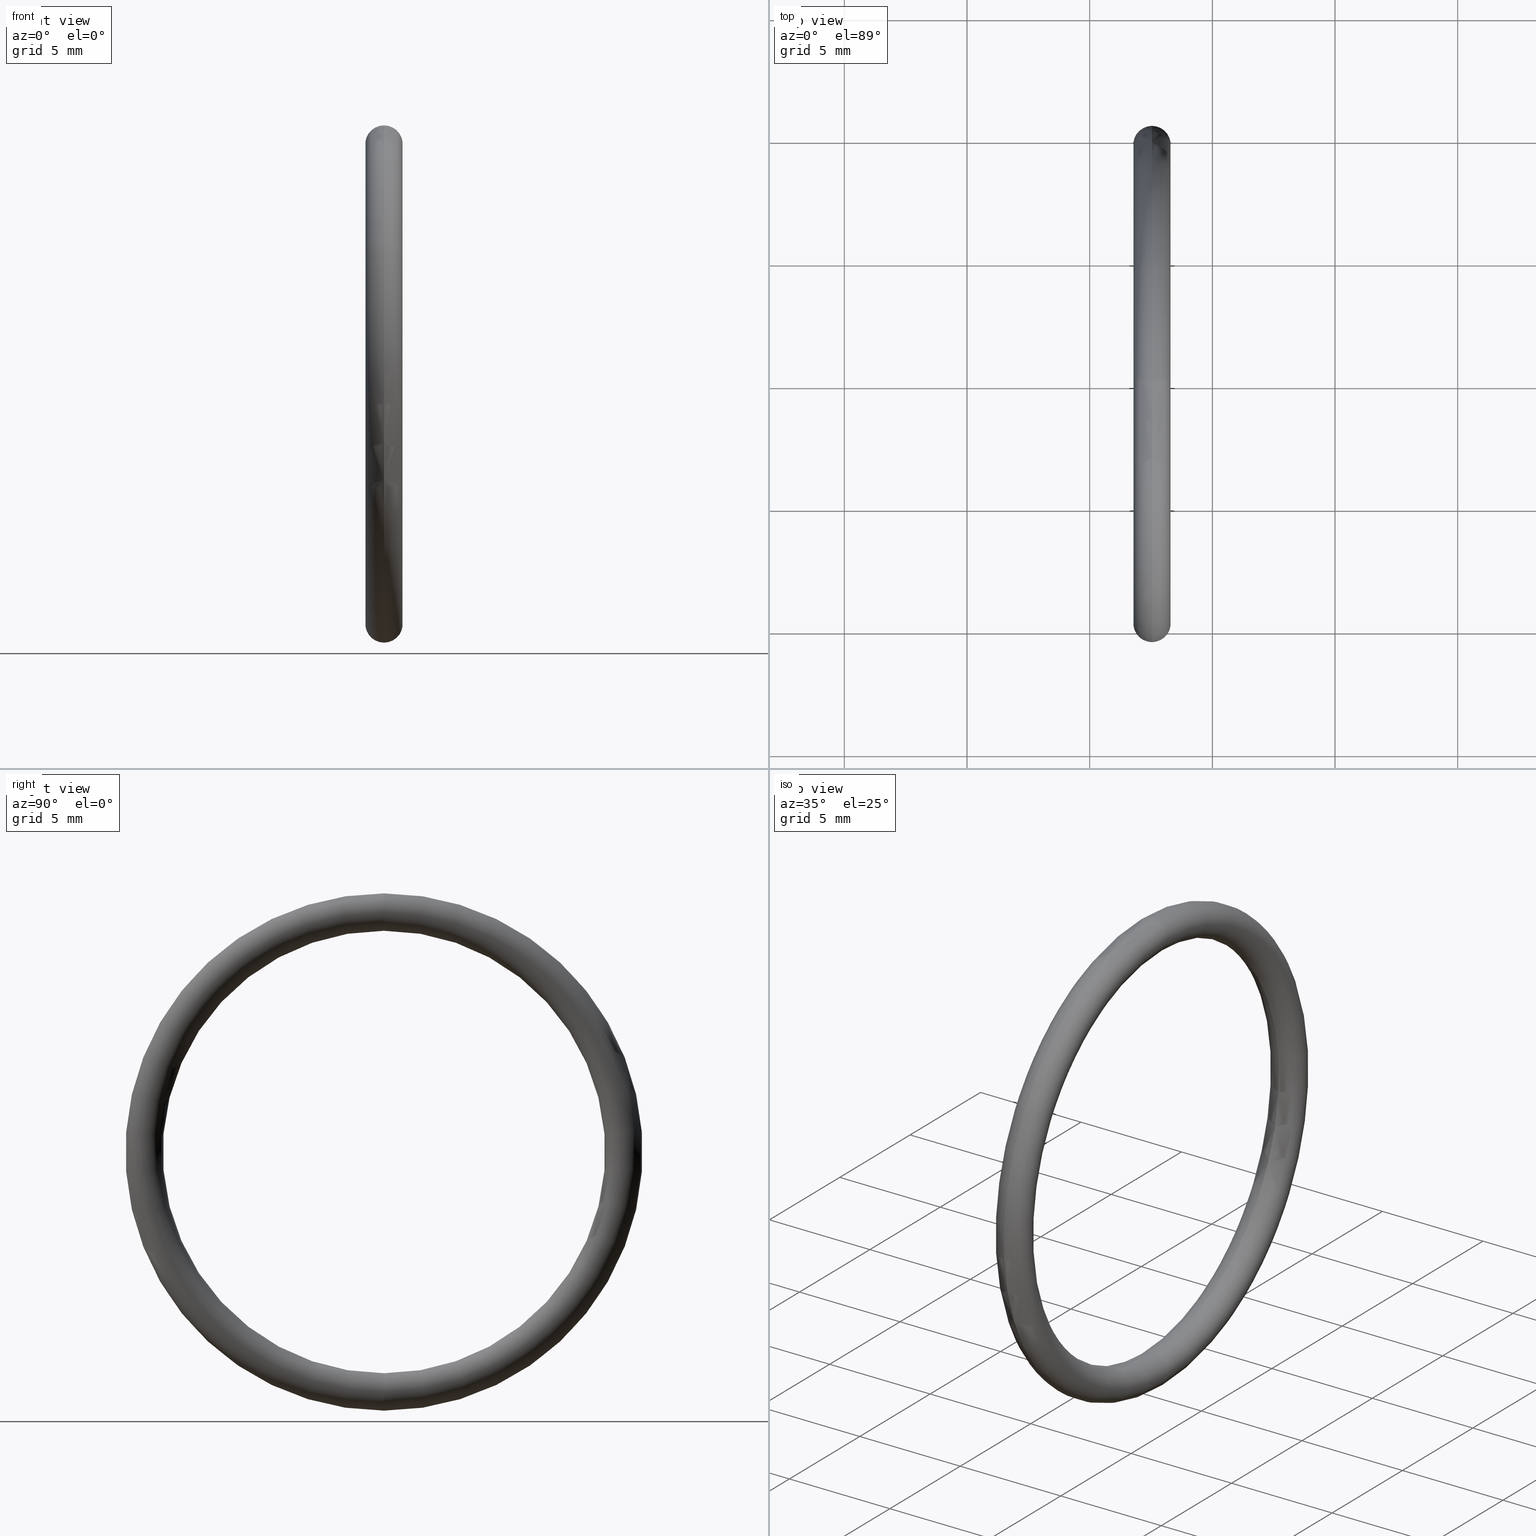
[diagram: canonical four-view strip — front | top / right | iso, engineering-drawing reading convention]
A machine part, canonical four-view strip (front | top / right | iso — engineering-drawing reading convention). The complete STEP part file that produces these views, byte-faithful:
ISO-10303-21;
HEADER;
FILE_DESCRIPTION (( 'STEP AP203' ),
    '1' );
FILE_NAME ('OR-16-SI.STEP',
    '2006-03-03T07:23:42',
    ( 'bay06' ),
    ( '' ),
    'SwSTEP 2.0',
    'SolidWorks 2008',
    '' );
FILE_SCHEMA (( 'CONFIG_CONTROL_DESIGN' ));
ENDSEC;

DATA;
#1 = ORIENTED_EDGE ( 'NONE', *, *, #4, .F. ) ;
#2 = EDGE_CURVE ( 'NONE', #25, #22, #110, .T. ) ;
#3 = ORIENTED_EDGE ( 'NONE', *, *, #6, .F. ) ;
#4 = EDGE_CURVE ( 'NONE', #12, #25, #105, .T. ) ;
#5 = ORIENTED_EDGE ( 'NONE', *, *, #29, .F. ) ;
#6 = EDGE_CURVE ( 'NONE', #12, #11, #142, .T. ) ;
#7 = ORIENTED_EDGE ( 'NONE', *, *, #2, .T. ) ;
#8 = ORIENTED_EDGE ( 'NONE', *, *, #23, .F. ) ;
#9 = ORIENTED_EDGE ( 'NONE', *, *, #100, .T. ) ;
#10 = ORIENTED_EDGE ( 'NONE', *, *, #2, .F. ) ;
#11 = VERTEX_POINT ( 'NONE', #138 ) ;
#12 = VERTEX_POINT ( 'NONE', #137 ) ;
#13 = CLOSED_SHELL ( 'NONE', ( #32, #101, #27, #15 ) ) ;
#14 = ORIENTED_EDGE ( 'NONE', *, *, #6, .T. ) ;
#15 = ADVANCED_FACE ( 'NONE', ( #136 ), #134, .T. ) ;
#16 = EDGE_LOOP ( 'NONE', ( #8, #10, #9, #14 ) ) ;
#17 = ORIENTED_EDGE ( 'NONE', *, *, #18, .T. ) ;
#18 = EDGE_CURVE ( 'NONE', #11, #12, #130, .T. ) ;
#19 = EDGE_LOOP ( 'NONE', ( #21, #24, #17, #99 ) ) ;
#20 = EDGE_CURVE ( 'NONE', #22, #25, #125, .T. ) ;
#21 = ORIENTED_EDGE ( 'NONE', *, *, #20, .F. ) ;
#22 = VERTEX_POINT ( 'NONE', #120 ) ;
#23 = EDGE_CURVE ( 'NONE', #22, #11, #119, .T. ) ;
#24 = ORIENTED_EDGE ( 'NONE', *, *, #23, .T. ) ;
#25 = VERTEX_POINT ( 'NONE', #97 ) ;
#26 = ORIENTED_EDGE ( 'NONE', *, *, #29, .T. ) ;
#27 = ADVANCED_FACE ( 'NONE', ( #96 ), #95, .T. ) ;
#28 = EDGE_LOOP ( 'NONE', ( #5, #3, #31, #7 ) ) ;
#29 = EDGE_CURVE ( 'NONE', #11, #22, #94, .T. ) ;
#30 = ORIENTED_EDGE ( 'NONE', *, *, #20, .T. ) ;
#31 = ORIENTED_EDGE ( 'NONE', *, *, #4, .T. ) ;
#32 = ADVANCED_FACE ( 'NONE', ( #85 ), #84, .T. ) ;
#33 = PRODUCT_DEFINITION_SHAPE ( 'NONE', 'NONE',  #189 ) ;
#34 = PRODUCT_RELATED_PRODUCT_CATEGORY ( 'detail', '', ( #112 ) ) ;
#35 = CC_DESIGN_SECURITY_CLASSIFICATION ( #56, ( #168 ) ) ;
#36 = CC_DESIGN_APPROVAL ( #44, ( #56 ) ) ;
#37 = APPROVAL_DATE_TIME ( #38, #44 ) ;
#38 = DATE_AND_TIME ( #39, #40 ) ;
#39 = CALENDAR_DATE ( 2006, 3, 3 ) ;
#40 = LOCAL_TIME ( 12, 53, 42.00000000000000000, #41 ) ;
#41 = COORDINATED_UNIVERSAL_TIME_OFFSET ( 5, 30, .AHEAD. ) ;
#42 = APPROVAL_PERSON_ORGANIZATION ( #46, #44, #43 ) ;
#43 = APPROVAL_ROLE ( '' ) ;
#44 = APPROVAL ( #45, 'UNSPECIFIED' ) ;
#45 = APPROVAL_STATUS ( 'not_yet_approved' ) ;
#46 = PERSON_AND_ORGANIZATION ( #111, #196 ) ;
#47 = CC_DESIGN_DATE_AND_TIME_ASSIGNMENT ( #49, #48, ( #56 ) ) ;
#48 = DATE_TIME_ROLE ( 'classification_date' ) ;
#49 = DATE_AND_TIME ( #50, #51 ) ;
#50 = CALENDAR_DATE ( 2006, 3, 3 ) ;
#51 = LOCAL_TIME ( 12, 53, 42.00000000000000000, #52 ) ;
#52 = COORDINATED_UNIVERSAL_TIME_OFFSET ( 5, 30, .AHEAD. ) ;
#53 = CC_DESIGN_PERSON_AND_ORGANIZATION_ASSIGNMENT ( #55, #54, ( #56 ) ) ;
#54 = PERSON_AND_ORGANIZATION_ROLE ( 'classification_officer' ) ;
#55 = PERSON_AND_ORGANIZATION ( #111, #196 ) ;
#56 = SECURITY_CLASSIFICATION ( '', '', #57 ) ;
#57 = SECURITY_CLASSIFICATION_LEVEL ( 'unclassified' ) ;
#58 = CC_DESIGN_PERSON_AND_ORGANIZATION_ASSIGNMENT ( #60, #59, ( #168 ) ) ;
#59 = PERSON_AND_ORGANIZATION_ROLE ( 'design_supplier' ) ;
#60 = PERSON_AND_ORGANIZATION ( #111, #196 ) ;
#61 = CC_DESIGN_PERSON_AND_ORGANIZATION_ASSIGNMENT ( #63, #62, ( #168 ) ) ;
#62 = PERSON_AND_ORGANIZATION_ROLE ( 'creator' ) ;
#63 = PERSON_AND_ORGANIZATION ( #111, #196 ) ;
#64 = CC_DESIGN_APPROVAL ( #165, ( #168 ) ) ;
#65 = APPROVAL_DATE_TIME ( #66, #165 ) ;
#66 = DATE_AND_TIME ( #160, #161 ) ;
#67 =( LENGTH_UNIT ( ) NAMED_UNIT ( * ) SI_UNIT ( $, .METRE. ) );
#68 = DIRECTION ( 'NONE',  ( 0.0000000000000000000, 0.0000000000000000000, 1.000000000000000000 ) ) ;
#69 = DIRECTION ( 'NONE',  ( -1.000000000000000000, -0.0000000000000000000, -0.0000000000000000000 ) ) ;
#70 = CARTESIAN_POINT ( 'NONE',  ( 0.1000000000000000600, 0.0000000000000000000, 0.0000000000000000000 ) ) ;
#71 = AXIS2_PLACEMENT_3D ( 'NONE', #70, #69, #68 ) ;
#72 = AXIS2_PLACEMENT_3D ( 'NONE', #151, #150, #149 ) ;
#73 = TOROIDAL_SURFACE ( 'NONE', #71, 0.3850000000000000100, 0.03000000000000000900 ) ;
#74 = FACE_OUTER_BOUND ( 'NONE', #102, .T. ) ;
#75 = DIRECTION ( 'NONE',  ( 0.0000000000000000000, 0.0000000000000000000, 1.000000000000000000 ) ) ;
#76 = DIRECTION ( 'NONE',  ( -1.000000000000000000, -0.0000000000000000000, -0.0000000000000000000 ) ) ;
#77 = CARTESIAN_POINT ( 'NONE',  ( 0.1000000000000000600, 0.0000000000000000000, 0.0000000000000000000 ) ) ;
#78 = AXIS2_PLACEMENT_3D ( 'NONE', #77, #76, #75 ) ;
#79 = DIRECTION ( 'NONE',  ( 0.0000000000000000000, 0.0000000000000000000, 1.000000000000000000 ) ) ;
#80 = DIRECTION ( 'NONE',  ( -1.000000000000000000, -0.0000000000000000000, -0.0000000000000000000 ) ) ;
#81 = CARTESIAN_POINT ( 'NONE',  ( 0.1000000000000000600, 0.0000000000000000000, 0.0000000000000000000 ) ) ;
#82 = AXIS2_PLACEMENT_3D ( 'NONE', #81, #80, #79 ) ;
#83 = CIRCLE ( 'NONE', #78, 0.3549999999999999800 ) ;
#84 = TOROIDAL_SURFACE ( 'NONE', #82, 0.3850000000000000100, 0.03000000000000000900 ) ;
#85 = FACE_OUTER_BOUND ( 'NONE', #19, .T. ) ;
#86 = DIRECTION ( 'NONE',  ( 0.0000000000000000000, 0.0000000000000000000, 1.000000000000000000 ) ) ;
#87 = DIRECTION ( 'NONE',  ( -1.000000000000000000, -0.0000000000000000000, -0.0000000000000000000 ) ) ;
#88 = CARTESIAN_POINT ( 'NONE',  ( 0.1000000000000000600, 0.0000000000000000000, 0.0000000000000000000 ) ) ;
#89 = AXIS2_PLACEMENT_3D ( 'NONE', #88, #87, #86 ) ;
#90 = DIRECTION ( 'NONE',  ( 0.0000000000000000000, 0.0000000000000000000, 1.000000000000000000 ) ) ;
#91 = DIRECTION ( 'NONE',  ( -1.000000000000000000, -0.0000000000000000000, -0.0000000000000000000 ) ) ;
#92 = CARTESIAN_POINT ( 'NONE',  ( 0.1000000000000000600, 0.0000000000000000000, 0.0000000000000000000 ) ) ;
#93 = AXIS2_PLACEMENT_3D ( 'NONE', #92, #91, #90 ) ;
#94 = CIRCLE ( 'NONE', #89, 0.4150000000000000400 ) ;
#95 = TOROIDAL_SURFACE ( 'NONE', #93, 0.3850000000000000100, 0.03000000000000000900 ) ;
#96 = FACE_OUTER_BOUND ( 'NONE', #28, .T. ) ;
#97 = CARTESIAN_POINT ( 'NONE',  ( 0.1000000000000000600, 4.347496136973103500E-017, -0.3549999999999999800 ) ) ;
#98 = DIRECTION ( 'NONE',  ( 0.0000000000000000000, 0.0000000000000000000, 1.000000000000000000 ) ) ;
#99 = ORIENTED_EDGE ( 'NONE', *, *, #100, .F. ) ;
#100 = EDGE_CURVE ( 'NONE', #25, #12, #83, .T. ) ;
#101 = ADVANCED_FACE ( 'NONE', ( #74 ), #73, .T. ) ;
#102 = EDGE_LOOP ( 'NONE', ( #103, #26, #30, #1 ) ) ;
#103 = ORIENTED_EDGE ( 'NONE', *, *, #18, .F. ) ;
#104 = MANIFOLD_SOLID_BREP ( 'NONE', #13 ) ;
#105 = CIRCLE ( 'NONE', #146, 0.3549999999999999800 ) ;
#106 = DIRECTION ( 'NONE',  ( 0.0000000000000000000, -1.224646799147352200E-016, 1.000000000000000000 ) ) ;
#107 = DIRECTION ( 'NONE',  ( -0.0000000000000000000, 1.000000000000000000, 1.224646799147353200E-016 ) ) ;
#108 = CARTESIAN_POINT ( 'NONE',  ( 0.1000000000000000600, 4.714890176717309300E-017, -0.3850000000000000100 ) ) ;
#109 = AXIS2_PLACEMENT_3D ( 'NONE', #108, #107, #106 ) ;
#110 = CIRCLE ( 'NONE', #109, 0.03000000000000002300 ) ;
#111 = PERSON ( 'UNSPECIFIED', 'UNSPECIFIED', 'UNSPECIFIED', ('UNSPECIFIED'), ('UNSPECIFIED'), ('UNSPECIFIED') ) ;
#112 = PRODUCT ( 'OR-16-SI', 'OR-16-SI', '', ( #113 ) ) ;
#113 = MECHANICAL_CONTEXT ( 'NONE', #148, 'mechanical' ) ;
#114 = APPLICATION_PROTOCOL_DEFINITION ( 'international standard', 'config_control_design', 1994, #148 ) ;
#115 = SHAPE_DEFINITION_REPRESENTATION ( #33, #152 ) ;
#116 = DIRECTION ( 'NONE',  ( -1.000000000000000000, -0.0000000000000000000, -0.0000000000000000000 ) ) ;
#117 = CARTESIAN_POINT ( 'NONE',  ( 0.1000000000000000600, 0.0000000000000000000, 0.0000000000000000000 ) ) ;
#118 = AXIS2_PLACEMENT_3D ( 'NONE', #117, #116, #98 ) ;
#119 = CIRCLE ( 'NONE', #118, 0.4150000000000000400 ) ;
#120 = CARTESIAN_POINT ( 'NONE',  ( 0.1000000000000000600, 5.082284216461516300E-017, -0.4150000000000000400 ) ) ;
#121 = DIRECTION ( 'NONE',  ( 0.0000000000000000000, -1.224646799147352200E-016, 1.000000000000000000 ) ) ;
#122 = DIRECTION ( 'NONE',  ( -0.0000000000000000000, 1.000000000000000000, 1.224646799147353200E-016 ) ) ;
#123 = CARTESIAN_POINT ( 'NONE',  ( 0.1000000000000000600, 4.714890176717309300E-017, -0.3850000000000000100 ) ) ;
#124 = AXIS2_PLACEMENT_3D ( 'NONE', #123, #122, #121 ) ;
#125 = CIRCLE ( 'NONE', #124, 0.03000000000000002300 ) ;
#126 = DIRECTION ( 'NONE',  ( 0.0000000000000000000, 0.0000000000000000000, -1.000000000000000000 ) ) ;
#127 = DIRECTION ( 'NONE',  ( 0.0000000000000000000, -1.000000000000000000, 0.0000000000000000000 ) ) ;
#128 = CARTESIAN_POINT ( 'NONE',  ( 0.1000000000000000600, 0.0000000000000000000, 0.3850000000000000100 ) ) ;
#129 = AXIS2_PLACEMENT_3D ( 'NONE', #128, #127, #126 ) ;
#130 = CIRCLE ( 'NONE', #129, 0.03000000000000002300 ) ;
#131 = DIRECTION ( 'NONE',  ( 0.0000000000000000000, 0.0000000000000000000, 1.000000000000000000 ) ) ;
#132 = DIRECTION ( 'NONE',  ( -1.000000000000000000, -0.0000000000000000000, -0.0000000000000000000 ) ) ;
#133 = AXIS2_PLACEMENT_3D ( 'NONE', #135, #132, #131 ) ;
#134 = TOROIDAL_SURFACE ( 'NONE', #133, 0.3850000000000000100, 0.03000000000000000900 ) ;
#135 = CARTESIAN_POINT ( 'NONE',  ( 0.1000000000000000600, 0.0000000000000000000, 0.0000000000000000000 ) ) ;
#136 = FACE_OUTER_BOUND ( 'NONE', #16, .T. ) ;
#137 = CARTESIAN_POINT ( 'NONE',  ( 0.1000000000000000600, 0.0000000000000000000, 0.3549999999999999800 ) ) ;
#138 = CARTESIAN_POINT ( 'NONE',  ( 0.1000000000000000600, 0.0000000000000000000, 0.4150000000000000400 ) ) ;
#139 = DIRECTION ( 'NONE',  ( 0.0000000000000000000, 0.0000000000000000000, -1.000000000000000000 ) ) ;
#140 = DIRECTION ( 'NONE',  ( 0.0000000000000000000, -1.000000000000000000, 0.0000000000000000000 ) ) ;
#141 = AXIS2_PLACEMENT_3D ( 'NONE', #147, #140, #139 ) ;
#142 = CIRCLE ( 'NONE', #141, 0.03000000000000002300 ) ;
#143 = DIRECTION ( 'NONE',  ( 0.0000000000000000000, 0.0000000000000000000, 1.000000000000000000 ) ) ;
#144 = DIRECTION ( 'NONE',  ( -1.000000000000000000, -0.0000000000000000000, -0.0000000000000000000 ) ) ;
#145 = CARTESIAN_POINT ( 'NONE',  ( 0.1000000000000000600, 0.0000000000000000000, 0.0000000000000000000 ) ) ;
#146 = AXIS2_PLACEMENT_3D ( 'NONE', #145, #144, #143 ) ;
#147 = CARTESIAN_POINT ( 'NONE',  ( 0.1000000000000000600, 0.0000000000000000000, 0.3850000000000000100 ) ) ;
#148 = APPLICATION_CONTEXT ( 'configuration controlled 3d designs of mechanical parts and assemblies' ) ;
#149 = DIRECTION ( 'NONE',  ( 1.000000000000000000, 0.0000000000000000000, 0.0000000000000000000 ) ) ;
#150 = DIRECTION ( 'NONE',  ( 0.0000000000000000000, 0.0000000000000000000, 1.000000000000000000 ) ) ;
#151 = CARTESIAN_POINT ( 'NONE',  ( 0.0000000000000000000, 0.0000000000000000000, 0.0000000000000000000 ) ) ;
#152 = ADVANCED_BREP_SHAPE_REPRESENTATION ( 'OR-16-SI', ( #104, #72 ), #153 ) ;
#153 =( GEOMETRIC_REPRESENTATION_CONTEXT ( 3 ) GLOBAL_UNCERTAINTY_ASSIGNED_CONTEXT ( ( #154 ) ) GLOBAL_UNIT_ASSIGNED_CONTEXT ( ( #157, #156, #155 ) ) REPRESENTATION_CONTEXT ( 'NONE', 'WORKASPACE' ) );
#154 = UNCERTAINTY_MEASURE_WITH_UNIT (LENGTH_MEASURE( 1.000000000000000100E-005 ), #157, 'distance_accuracy_value', 'NONE');
#155 =( NAMED_UNIT ( * ) SI_UNIT ( $, .STERADIAN. ) SOLID_ANGLE_UNIT ( ) );
#156 =( NAMED_UNIT ( * ) PLANE_ANGLE_UNIT ( ) SI_UNIT ( $, .RADIAN. ) );
#157 =( CONVERSION_BASED_UNIT ( 'INCH', #158 ) LENGTH_UNIT ( ) NAMED_UNIT ( #159 ) );
#158 = LENGTH_MEASURE_WITH_UNIT ( LENGTH_MEASURE( 0.02539999999999999900 ), #67 );
#159 = DIMENSIONAL_EXPONENTS ( 1.000000000000000000, 0.0000000000000000000, 0.0000000000000000000, 0.0000000000000000000, 0.0000000000000000000, 0.0000000000000000000, 0.0000000000000000000 ) ;
#160 = CALENDAR_DATE ( 2006, 3, 3 ) ;
#161 = LOCAL_TIME ( 12, 53, 42.00000000000000000, #162 ) ;
#162 = COORDINATED_UNIVERSAL_TIME_OFFSET ( 5, 30, .AHEAD. ) ;
#163 = APPROVAL_PERSON_ORGANIZATION ( #167, #165, #164 ) ;
#164 = APPROVAL_ROLE ( '' ) ;
#165 = APPROVAL ( #166, 'UNSPECIFIED' ) ;
#166 = APPROVAL_STATUS ( 'not_yet_approved' ) ;
#167 = PERSON_AND_ORGANIZATION ( #111, #196 ) ;
#168 = PRODUCT_DEFINITION_FORMATION_WITH_SPECIFIED_SOURCE ( 'ANY', '', #112, .NOT_KNOWN. ) ;
#169 = CC_DESIGN_DATE_AND_TIME_ASSIGNMENT ( #171, #170, ( #189 ) ) ;
#170 = DATE_TIME_ROLE ( 'creation_date' ) ;
#171 = DATE_AND_TIME ( #172, #173 ) ;
#172 = CALENDAR_DATE ( 2006, 3, 3 ) ;
#173 = LOCAL_TIME ( 12, 53, 42.00000000000000000, #174 ) ;
#174 = COORDINATED_UNIVERSAL_TIME_OFFSET ( 5, 30, .AHEAD. ) ;
#175 = CC_DESIGN_PERSON_AND_ORGANIZATION_ASSIGNMENT ( #177, #176, ( #189 ) ) ;
#176 = PERSON_AND_ORGANIZATION_ROLE ( 'creator' ) ;
#177 = PERSON_AND_ORGANIZATION ( #111, #196 ) ;
#178 = CC_DESIGN_APPROVAL ( #186, ( #189 ) ) ;
#179 = APPROVAL_DATE_TIME ( #180, #186 ) ;
#180 = DATE_AND_TIME ( #181, #182 ) ;
#181 = CALENDAR_DATE ( 2006, 3, 3 ) ;
#182 = LOCAL_TIME ( 12, 53, 42.00000000000000000, #183 ) ;
#183 = COORDINATED_UNIVERSAL_TIME_OFFSET ( 5, 30, .AHEAD. ) ;
#184 = APPROVAL_PERSON_ORGANIZATION ( #188, #186, #185 ) ;
#185 = APPROVAL_ROLE ( '' ) ;
#186 = APPROVAL ( #187, 'UNSPECIFIED' ) ;
#187 = APPROVAL_STATUS ( 'not_yet_approved' ) ;
#188 = PERSON_AND_ORGANIZATION ( #111, #196 ) ;
#189 = PRODUCT_DEFINITION ( 'UNKNOWN', '', #168, #190 ) ;
#190 = DESIGN_CONTEXT ( 'detailed design', #192, 'design' ) ;
#191 = APPLICATION_PROTOCOL_DEFINITION ( 'international standard', 'config_control_design', 1994, #192 ) ;
#192 = APPLICATION_CONTEXT ( 'configuration controlled 3d designs of mechanical parts and assemblies' ) ;
#193 = CC_DESIGN_PERSON_AND_ORGANIZATION_ASSIGNMENT ( #195, #194, ( #112 ) ) ;
#194 = PERSON_AND_ORGANIZATION_ROLE ( 'design_owner' ) ;
#195 = PERSON_AND_ORGANIZATION ( #111, #196 ) ;
#196 = ORGANIZATION ( 'UNSPECIFIED', 'UNSPECIFIED', '' ) ;
ENDSEC;
END-ISO-10303-21;
